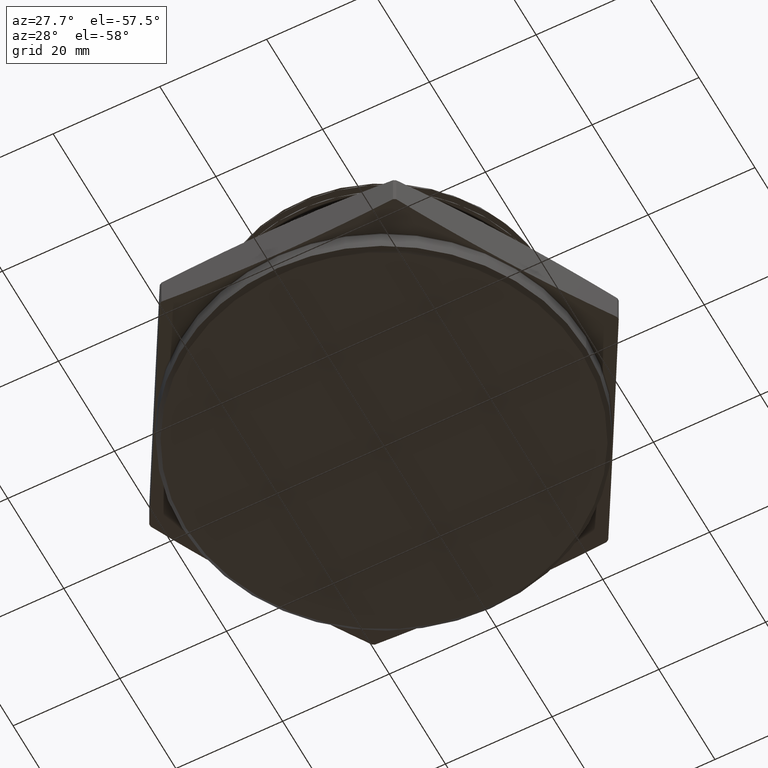
[diagram: clean part render]
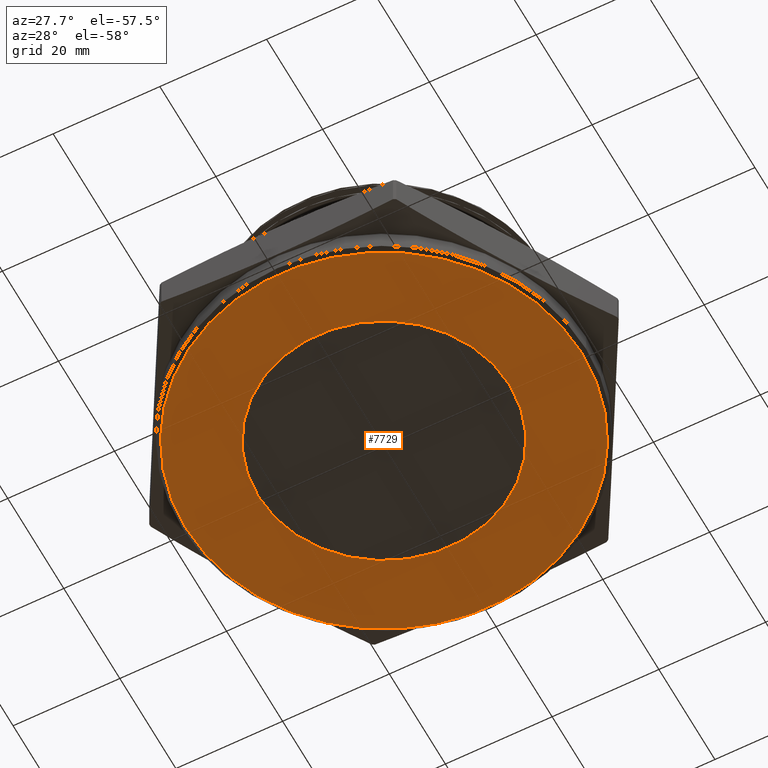
[diagram: same view with one face highlighted and labeled with its STEP entity id]
A machine part, auxiliary view. The second image highlights one B-rep face of the part: STEP entity #7729.
In plain terms, the highlighted planar face has unit normal (0, 0, -1).
Its self-contained STEP definition (entity closure, byte-faithful):
#615 = VERTEX_POINT ( 'NONE', #6996 ) ;
#616 = VERTEX_POINT ( 'NONE', #6993 ) ;
#617 = VERTEX_POINT ( 'NONE', #6991 ) ;
#642 = VERTEX_POINT ( 'NONE', #6966 ) ;
#721 = EDGE_LOOP ( 'NONE', ( #6150, #6124 ) ) ;
#731 = EDGE_LOOP ( 'NONE', ( #6183, #6186 ) ) ;
#1581 = DIRECTION ( 'NONE',  ( 0.0000000000000000000, 0.0000000000000000000, -1.000000000000000000 ) ) ;
#1582 = CARTESIAN_POINT ( 'NONE',  ( 0.0000000000000000000, 0.0000000000000000000, -0.1799999999999999900 ) ) ;
#1584 = PLANE ( 'NONE',  #3815 ) ;
#1586 = DIRECTION ( 'NONE',  ( -1.000000000000000000, 0.0000000000000000000, -0.0000000000000000000 ) ) ;
#3618 = EDGE_CURVE ( 'NONE', #616, #615, #5973, .T. ) ;
#3619 = EDGE_CURVE ( 'NONE', #617, #642, #5974, .T. ) ;
#3697 = EDGE_CURVE ( 'NONE', #642, #617, #6060, .T. ) ;
#3703 = EDGE_CURVE ( 'NONE', #615, #616, #6070, .T. ) ;
#3762 = AXIS2_PLACEMENT_3D ( 'NONE', #7444, #7445, #7446 ) ;
#3763 = AXIS2_PLACEMENT_3D ( 'NONE', #7447, #7448, #7449 ) ;
#3799 = AXIS2_PLACEMENT_3D ( 'NONE', #6862, #6863, #6864 ) ;
#3802 = AXIS2_PLACEMENT_3D ( 'NONE', #6879, #6880, #6881 ) ;
#3815 = AXIS2_PLACEMENT_3D ( 'NONE', #1582, #1581, #1586 ) ;
#5973 = CIRCLE ( 'NONE', #3762, 0.9280000000000000500 ) ;
#5974 = CIRCLE ( 'NONE', #3763, 1.460000000000002000 ) ;
#6060 = CIRCLE ( 'NONE', #3799, 1.460000000000002000 ) ;
#6070 = CIRCLE ( 'NONE', #3802, 0.9280000000000000500 ) ;
#6078 = FACE_BOUND ( 'NONE', #731, .T. ) ;
#6091 = FACE_OUTER_BOUND ( 'NONE', #721, .T. ) ;
#6124 = ORIENTED_EDGE ( 'NONE', *, *, #3697, .T. ) ;
#6150 = ORIENTED_EDGE ( 'NONE', *, *, #3619, .T. ) ;
#6183 = ORIENTED_EDGE ( 'NONE', *, *, #3618, .F. ) ;
#6186 = ORIENTED_EDGE ( 'NONE', *, *, #3703, .F. ) ;
#6862 = CARTESIAN_POINT ( 'NONE',  ( 0.0000000000000000000, 0.0000000000000000000, -0.1799999999999999900 ) ) ;
#6863 = DIRECTION ( 'NONE',  ( 0.0000000000000000000, 0.0000000000000000000, -1.000000000000000000 ) ) ;
#6864 = DIRECTION ( 'NONE',  ( -1.000000000000000000, 0.0000000000000000000, 0.0000000000000000000 ) ) ;
#6879 = CARTESIAN_POINT ( 'NONE',  ( 3.673940397442043000E-018, 0.0000000000000000000, -0.1800000000000000200 ) ) ;
#6880 = DIRECTION ( 'NONE',  ( -3.343854012755361800E-017, -0.0000000000000000000, -1.000000000000000000 ) ) ;
#6881 = DIRECTION ( 'NONE',  ( -1.000000000000000000, 0.0000000000000000000, 3.679752146638285500E-017 ) ) ;
#6966 = CARTESIAN_POINT ( 'NONE',  ( -1.460000000000002000, 1.806354028742347500E-016, -0.1799999999999999900 ) ) ;
#6991 = CARTESIAN_POINT ( 'NONE',  ( 1.460000000000002000, 0.0000000000000000000, -0.1799999999999999900 ) ) ;
#6993 = CARTESIAN_POINT ( 'NONE',  ( -0.9280000000000000500, 0.0000000000000000000, -0.1799999999999999900 ) ) ;
#6996 = CARTESIAN_POINT ( 'NONE',  ( 0.9280000000000000500, 1.136472229608744000E-016, -0.1800000000000000500 ) ) ;
#7444 = CARTESIAN_POINT ( 'NONE',  ( 3.673940397442043000E-018, 0.0000000000000000000, -0.1800000000000000200 ) ) ;
#7445 = DIRECTION ( 'NONE',  ( -3.343854012755361800E-017, -0.0000000000000000000, -1.000000000000000000 ) ) ;
#7446 = DIRECTION ( 'NONE',  ( -1.000000000000000000, 0.0000000000000000000, 3.679752146638285500E-017 ) ) ;
#7447 = CARTESIAN_POINT ( 'NONE',  ( 0.0000000000000000000, 0.0000000000000000000, -0.1799999999999999900 ) ) ;
#7448 = DIRECTION ( 'NONE',  ( 0.0000000000000000000, 0.0000000000000000000, -1.000000000000000000 ) ) ;
#7449 = DIRECTION ( 'NONE',  ( -1.000000000000000000, 0.0000000000000000000, 0.0000000000000000000 ) ) ;
#7729 = ADVANCED_FACE ( 'NONE', ( #6078, #6091 ), #1584, .T. ) ;